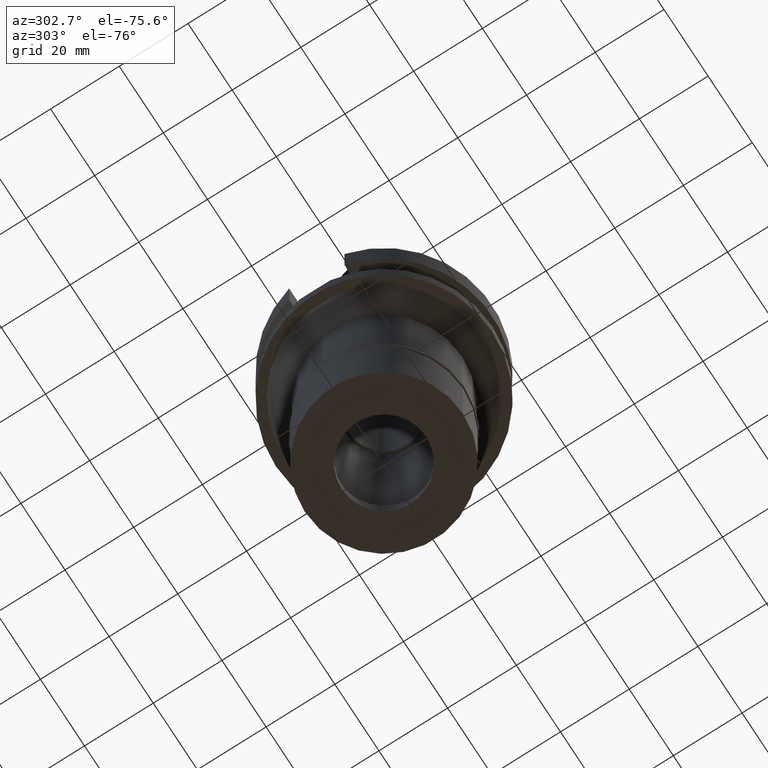
[diagram: clean part render]
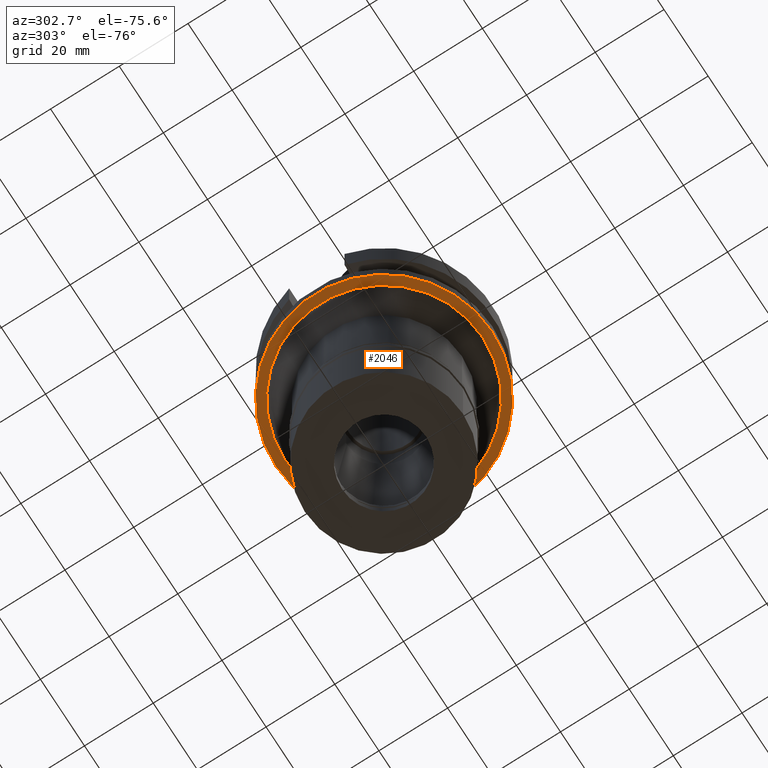
[diagram: same view with one face highlighted and labeled with its STEP entity id]
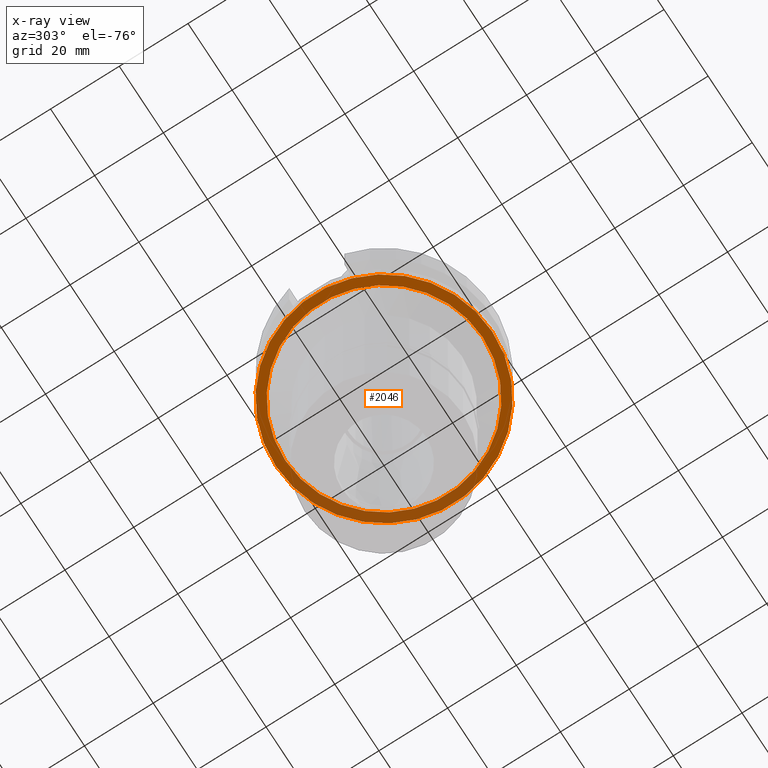
[diagram: x-ray of the same camera — body ghosted, the highlighted face saturated]
A machine part, auxiliary view. The second image highlights one B-rep face of the part: STEP entity #2046.
The next image is the same camera in x-ray: the body ghosted, the highlighted face saturated — about 27% of this face is hidden behind the body in this view.
In plain terms, the highlighted planar face has unit normal (0, 0, -1).
Its self-contained STEP definition (entity closure, byte-faithful):
#31 = CARTESIAN_POINT ( 'NONE',  ( 0.0000000000000000000, 0.0000000000000000000, -27.00000000000000000 ) ) ;
#71 = VERTEX_POINT ( 'NONE', #1878 ) ;
#88 = EDGE_CURVE ( 'NONE', #755, #71, #2186, .T. ) ;
#134 = CARTESIAN_POINT ( 'NONE',  ( 0.0000000000000000000, -28.75000000000000000, -27.00000000000000000 ) ) ;
#258 = EDGE_CURVE ( 'NONE', #71, #755, #2533, .T. ) ;
#343 = AXIS2_PLACEMENT_3D ( 'NONE', #2550, #2995, #849 ) ;
#397 = DIRECTION ( 'NONE',  ( 0.0000000000000000000, 0.0000000000000000000, -1.000000000000000000 ) ) ;
#504 = DIRECTION ( 'NONE',  ( 0.0000000000000000000, -1.000000000000000000, 0.0000000000000000000 ) ) ;
#528 = CARTESIAN_POINT ( 'NONE',  ( 0.0000000000000000000, 0.0000000000000000000, -27.00000000000000000 ) ) ;
#541 = DIRECTION ( 'NONE',  ( 0.0000000000000000000, 0.0000000000000000000, 1.000000000000000000 ) ) ;
#618 = CARTESIAN_POINT ( 'NONE',  ( 0.0000000000000000000, 0.0000000000000000000, -27.00000000000000000 ) ) ;
#755 = VERTEX_POINT ( 'NONE', #827 ) ;
#759 = AXIS2_PLACEMENT_3D ( 'NONE', #618, #397, #1332 ) ;
#772 = CIRCLE ( 'NONE', #2503, 28.75000000000000000 ) ;
#801 = FACE_OUTER_BOUND ( 'NONE', #2218, .T. ) ;
#816 = VERTEX_POINT ( 'NONE', #134 ) ;
#827 = CARTESIAN_POINT ( 'NONE',  ( 0.0000000000000000000, -31.50000000000000000, -27.00000000000000000 ) ) ;
#836 = EDGE_CURVE ( 'NONE', #2328, #816, #2244, .T. ) ;
#849 = DIRECTION ( 'NONE',  ( 0.0000000000000000000, 1.000000000000000000, 0.0000000000000000000 ) ) ;
#1002 = PLANE ( 'NONE',  #2204 ) ;
#1229 = DIRECTION ( 'NONE',  ( 0.0000000000000000000, -1.000000000000000000, 0.0000000000000000000 ) ) ;
#1332 = DIRECTION ( 'NONE',  ( 0.0000000000000000000, 1.000000000000000000, 0.0000000000000000000 ) ) ;
#1589 = ORIENTED_EDGE ( 'NONE', *, *, #88, .F. ) ;
#1643 = DIRECTION ( 'NONE',  ( 0.0000000000000000000, 0.0000000000000000000, -1.000000000000000000 ) ) ;
#1646 = AXIS2_PLACEMENT_3D ( 'NONE', #528, #541, #1229 ) ;
#1729 = ORIENTED_EDGE ( 'NONE', *, *, #2611, .F. ) ;
#1748 = FACE_BOUND ( 'NONE', #2257, .T. ) ;
#1878 = CARTESIAN_POINT ( 'NONE',  ( 0.0000000000000000000, 31.50000000000000000, -27.00000000000000000 ) ) ;
#2046 = ADVANCED_FACE ( 'NONE', ( #801, #1748 ), #1002, .T. ) ;
#2180 = DIRECTION ( 'NONE',  ( 0.0000000000000000000, 0.0000000000000000000, -1.000000000000000000 ) ) ;
#2186 = CIRCLE ( 'NONE', #1646, 31.50000000000000000 ) ;
#2204 = AXIS2_PLACEMENT_3D ( 'NONE', #2902, #2180, #2897 ) ;
#2218 = EDGE_LOOP ( 'NONE', ( #2243, #1589 ) ) ;
#2243 = ORIENTED_EDGE ( 'NONE', *, *, #258, .F. ) ;
#2244 = CIRCLE ( 'NONE', #759, 28.75000000000000000 ) ;
#2257 = EDGE_LOOP ( 'NONE', ( #2893, #1729 ) ) ;
#2328 = VERTEX_POINT ( 'NONE', #2712 ) ;
#2503 = AXIS2_PLACEMENT_3D ( 'NONE', #31, #1643, #504 ) ;
#2533 = CIRCLE ( 'NONE', #343, 31.50000000000000000 ) ;
#2550 = CARTESIAN_POINT ( 'NONE',  ( 0.0000000000000000000, 0.0000000000000000000, -27.00000000000000000 ) ) ;
#2611 = EDGE_CURVE ( 'NONE', #816, #2328, #772, .T. ) ;
#2712 = CARTESIAN_POINT ( 'NONE',  ( 0.0000000000000000000, 28.75000000000000000, -27.00000000000000000 ) ) ;
#2893 = ORIENTED_EDGE ( 'NONE', *, *, #836, .F. ) ;
#2897 = DIRECTION ( 'NONE',  ( 0.0000000000000000000, -1.000000000000000000, 0.0000000000000000000 ) ) ;
#2902 = CARTESIAN_POINT ( 'NONE',  ( 0.0000000000000000000, 0.0000000000000000000, -27.00000000000000000 ) ) ;
#2995 = DIRECTION ( 'NONE',  ( 0.0000000000000000000, 0.0000000000000000000, 1.000000000000000000 ) ) ;